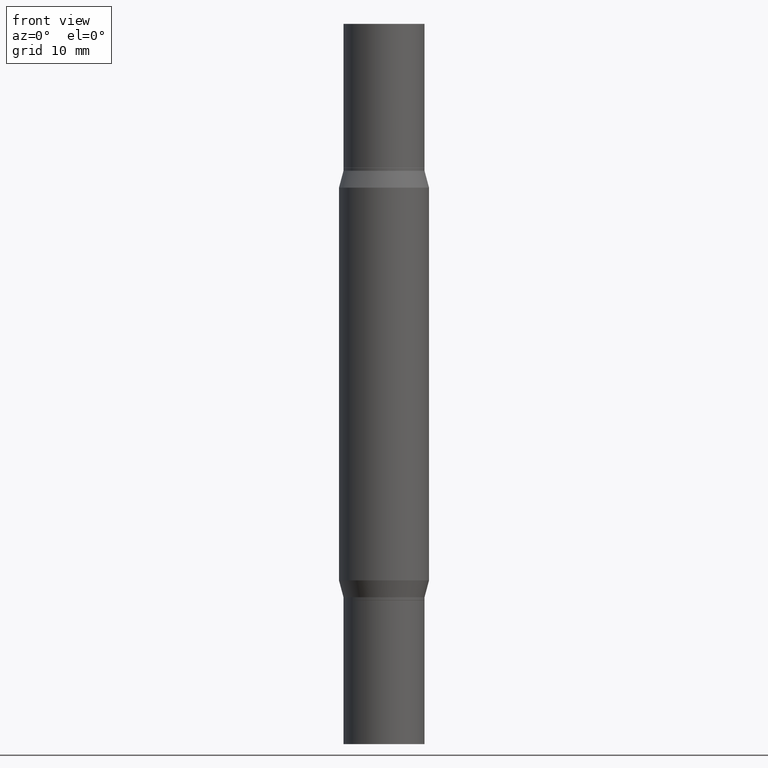
[diagram: clean part render]
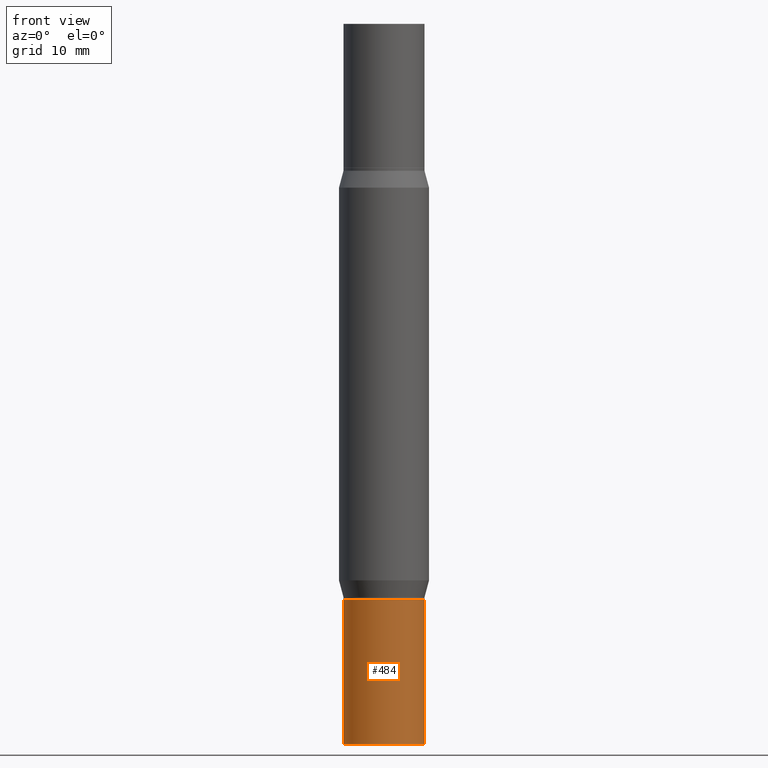
[diagram: same view with one face highlighted and labeled with its STEP entity id]
A machine part, front view. The second image highlights one B-rep face of the part: STEP entity #484.
In plain terms, the highlighted cylindrical surface (partial cylindrical patch) has radius 3.5712 mm, axis along (-0, 0, 1).
Its self-contained STEP definition (entity closure, byte-faithful):
#52 = ORIENTED_EDGE ( 'NONE', *, *, #127, .T. ) ;
#127 = EDGE_CURVE ( 'NONE', #473, #607, #278, .T. ) ;
#169 = VERTEX_POINT ( 'NONE', #357 ) ;
#170 = DIRECTION ( 'NONE',  ( -2.445468806185136597E-29, 3.491481338843145583E-15, 1.000000000000000000 ) ) ;
#189 = DIRECTION ( 'NONE',  ( 1.000000000000000000, -6.982962677686266711E-15, 4.876176775795936353E-29 ) ) ;
#216 = VECTOR ( 'NONE', #967, 39.37007874015748143 ) ;
#241 = CARTESIAN_POINT ( 'NONE',  ( -0.1406000000000000028, 9.990230864787008809E-16, -6.916022736898397739E-30 ) ) ;
#264 = EDGE_CURVE ( 'NONE', #169, #732, #390, .T. ) ;
#278 = LINE ( 'NONE', #439, #216 ) ;
#288 = CARTESIAN_POINT ( 'NONE',  ( 0.1406000000000000028, -7.964767230168980271E-15, -2.000000000000000444 ) ) ;
#306 = EDGE_CURVE ( 'NONE', #732, #607, #361, .T. ) ;
#319 = DIRECTION ( 'NONE',  ( 1.000000000000000000, -6.982962677686265133E-15, 0.000000000000000000 ) ) ;
#338 = ORIENTED_EDGE ( 'NONE', *, *, #264, .F. ) ;
#357 = CARTESIAN_POINT ( 'NONE',  ( -0.1406000000000000028, -6.856809925918377173E-15, -2.500000000000000000 ) ) ;
#361 = CIRCLE ( 'NONE', #379, 0.1406000000000000028 ) ;
#363 = AXIS2_PLACEMENT_3D ( 'NONE', #943, #872, #189 ) ;
#379 = AXIS2_PLACEMENT_3D ( 'NONE', #907, #170, #319 ) ;
#390 = LINE ( 'NONE', #241, #705 ) ;
#439 = CARTESIAN_POINT ( 'NONE',  ( 0.1406000000000000028, -9.818045524826891058E-16, 6.855904546769086274E-30 ) ) ;
#458 = EDGE_CURVE ( 'NONE', #169, #473, #467, .T. ) ;
#467 = CIRCLE ( 'NONE', #519, 0.1406000000000000028 ) ;
#473 = VERTEX_POINT ( 'NONE', #580 ) ;
#484 = ADVANCED_FACE ( 'NONE', ( #722 ), #717, .T. ) ;
#488 = DIRECTION ( 'NONE',  ( 1.000000000000000000, -6.982962677686272233E-15, 0.000000000000000000 ) ) ;
#499 = EDGE_LOOP ( 'NONE', ( #338, #610, #52, #601 ) ) ;
#519 = AXIS2_PLACEMENT_3D ( 'NONE', #867, #782, #488 ) ;
#580 = CARTESIAN_POINT ( 'NONE',  ( 0.1406000000000000028, -9.710507899590554837E-15, -2.500000000000000000 ) ) ;
#601 = ORIENTED_EDGE ( 'NONE', *, *, #306, .F. ) ;
#607 = VERTEX_POINT ( 'NONE', #288 ) ;
#610 = ORIENTED_EDGE ( 'NONE', *, *, #458, .T. ) ;
#705 = VECTOR ( 'NONE', #841, 39.37007874015748143 ) ;
#715 = CARTESIAN_POINT ( 'NONE',  ( -0.1406000000000000028, -6.856809925918377173E-15, -2.000000000000000444 ) ) ;
#717 = CYLINDRICAL_SURFACE ( 'NONE', #363, 0.1406000000000000028 ) ;
#722 = FACE_OUTER_BOUND ( 'NONE', #499, .T. ) ;
#732 = VERTEX_POINT ( 'NONE', #715 ) ;
#782 = DIRECTION ( 'NONE',  ( -2.445468806185136597E-29, 3.491481338843145583E-15, 1.000000000000000000 ) ) ;
#841 = DIRECTION ( 'NONE',  ( -2.445468806185136877E-29, 3.491481338843145188E-15, 1.000000000000000000 ) ) ;
#867 = CARTESIAN_POINT ( 'NONE',  ( 6.113672015462842613E-29, -8.728703347107864943E-15, -2.500000000000000000 ) ) ;
#872 = DIRECTION ( 'NONE',  ( -2.445468806185136597E-29, 3.491481338843145583E-15, 1.000000000000000000 ) ) ;
#907 = CARTESIAN_POINT ( 'NONE',  ( 4.890937612370273754E-29, -6.982962677686291954E-15, -2.000000000000000444 ) ) ;
#943 = CARTESIAN_POINT ( 'NONE',  ( 0.000000000000000000, 0.000000000000000000, 0.000000000000000000 ) ) ;
#967 = DIRECTION ( 'NONE',  ( -2.445468806185136877E-29, 3.491481338843145188E-15, 1.000000000000000000 ) ) ;